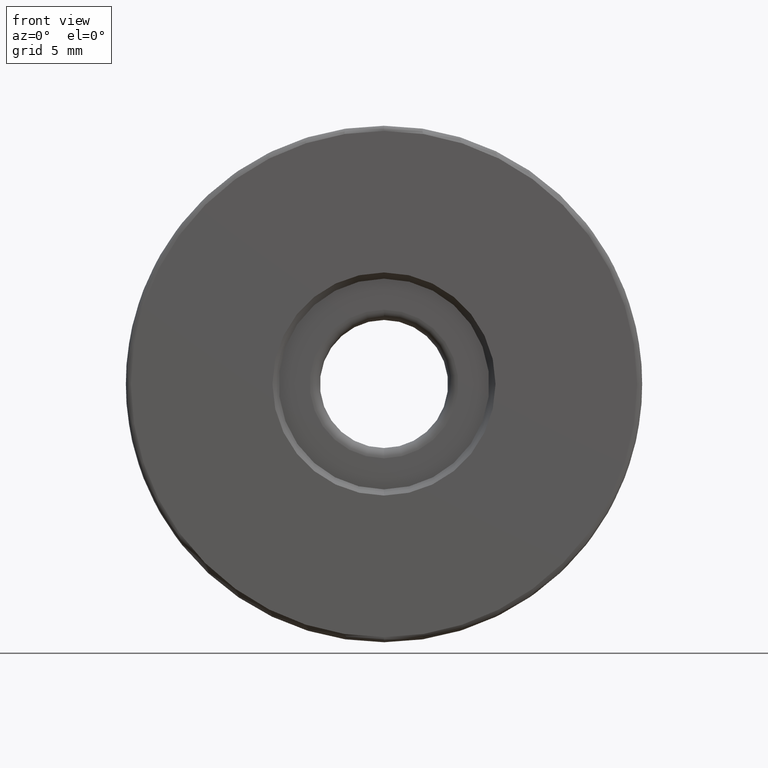
[diagram: clean part render]
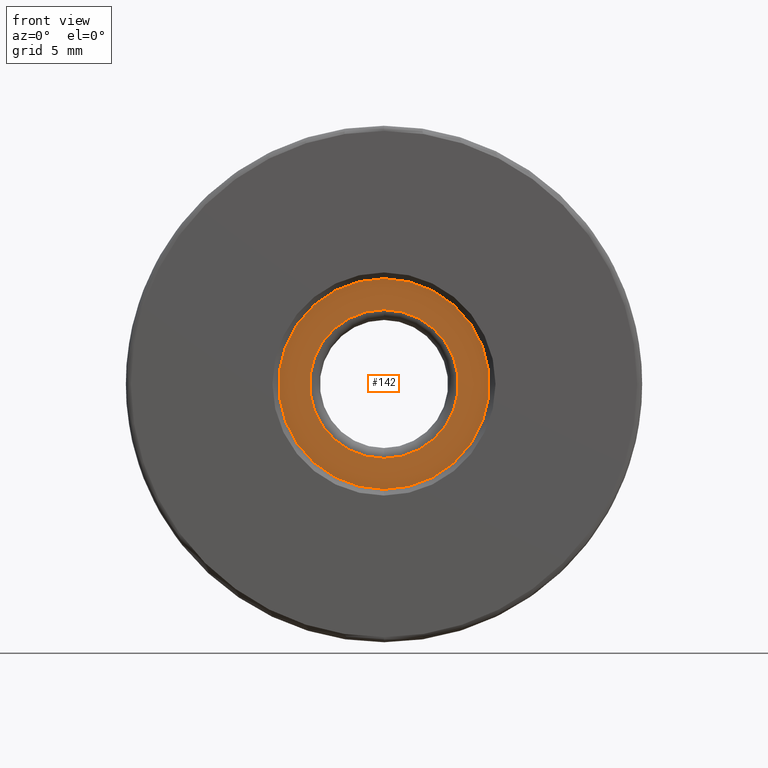
[diagram: same view with one face highlighted and labeled with its STEP entity id]
A machine part, front view. The second image highlights one B-rep face of the part: STEP entity #142.
In plain terms, the highlighted planar face has unit normal (0, -1, 0).
Its self-contained STEP definition (entity closure, byte-faithful):
#14 = DIRECTION ( 'NONE',  ( 0.0000000000000000000, -1.000000000000000000, 0.0000000000000000000 ) ) ;
#21 = DIRECTION ( 'NONE',  ( -0.0000000000000000000, 1.000000000000000000, -0.0000000000000000000 ) ) ;
#24 = CIRCLE ( 'NONE', #324, 5.100000000000000533 ) ;
#44 = AXIS2_PLACEMENT_3D ( 'NONE', #89, #341, #191 ) ;
#56 = CARTESIAN_POINT ( 'NONE',  ( -4.682026255059964726, -2.294975976998275158, 25.00000000000000000 ) ) ;
#60 = FACE_OUTER_BOUND ( 'NONE', #69, .T. ) ;
#62 = AXIS2_PLACEMENT_3D ( 'NONE', #435, #14, #348 ) ;
#65 = DIRECTION ( 'NONE',  ( 0.0000000000000000000, 0.0000000000000000000, -1.000000000000000000 ) ) ;
#69 = EDGE_LOOP ( 'NONE', ( #354, #459 ) ) ;
#70 = DIRECTION ( 'NONE',  ( 0.0000000000000000000, 0.0000000000000000000, 1.000000000000000000 ) ) ;
#82 = EDGE_CURVE ( 'NONE', #617, #272, #524, .T. ) ;
#89 = CARTESIAN_POINT ( 'NONE',  ( -4.682026255059964726, -2.294975976998275158, 25.00000000000000000 ) ) ;
#142 = ADVANCED_FACE ( 'NONE', ( #478, #60 ), #249, .T. ) ;
#147 = AXIS2_PLACEMENT_3D ( 'NONE', #605, #21, #70 ) ;
#175 = CIRCLE ( 'NONE', #147, 5.100000000000000533 ) ;
#182 = CARTESIAN_POINT ( 'NONE',  ( -4.682026255059962949, -2.294975976998275158, 28.60000000000000142 ) ) ;
#191 = DIRECTION ( 'NONE',  ( 0.0000000000000000000, 0.0000000000000000000, -1.000000000000000000 ) ) ;
#239 = EDGE_CURVE ( 'NONE', #522, #576, #175, .T. ) ;
#249 = PLANE ( 'NONE',  #62 ) ;
#266 = DIRECTION ( 'NONE',  ( -0.0000000000000000000, 1.000000000000000000, -0.0000000000000000000 ) ) ;
#272 = VERTEX_POINT ( 'NONE', #508 ) ;
#301 = ORIENTED_EDGE ( 'NONE', *, *, #82, .T. ) ;
#324 = AXIS2_PLACEMENT_3D ( 'NONE', #419, #266, #358 ) ;
#341 = DIRECTION ( 'NONE',  ( -0.0000000000000000000, 1.000000000000000000, -0.0000000000000000000 ) ) ;
#343 = DIRECTION ( 'NONE',  ( -0.0000000000000000000, 1.000000000000000000, -0.0000000000000000000 ) ) ;
#348 = DIRECTION ( 'NONE',  ( 0.0000000000000000000, 0.0000000000000000000, 1.000000000000000000 ) ) ;
#354 = ORIENTED_EDGE ( 'NONE', *, *, #239, .F. ) ;
#358 = DIRECTION ( 'NONE',  ( 0.0000000000000000000, 0.0000000000000000000, 1.000000000000000000 ) ) ;
#373 = CIRCLE ( 'NONE', #44, 3.599999999999999201 ) ;
#382 = EDGE_CURVE ( 'NONE', #272, #617, #373, .T. ) ;
#419 = CARTESIAN_POINT ( 'NONE',  ( -4.682026255059964726, -2.294975976998275158, 25.00000000000000000 ) ) ;
#435 = CARTESIAN_POINT ( 'NONE',  ( -4.682026255059964726, -2.294975976998275158, 25.00000000000000000 ) ) ;
#447 = EDGE_LOOP ( 'NONE', ( #554, #301 ) ) ;
#459 = ORIENTED_EDGE ( 'NONE', *, *, #493, .F. ) ;
#478 = FACE_BOUND ( 'NONE', #447, .T. ) ;
#493 = EDGE_CURVE ( 'NONE', #576, #522, #24, .T. ) ;
#508 = CARTESIAN_POINT ( 'NONE',  ( -4.682026255059964726, -2.294975976998275158, 21.40000000000000213 ) ) ;
#522 = VERTEX_POINT ( 'NONE', #564 ) ;
#524 = CIRCLE ( 'NONE', #534, 3.599999999999999201 ) ;
#526 = CARTESIAN_POINT ( 'NONE',  ( -4.682026255059963837, -2.294975976998275158, 30.10000000000000142 ) ) ;
#534 = AXIS2_PLACEMENT_3D ( 'NONE', #56, #343, #65 ) ;
#554 = ORIENTED_EDGE ( 'NONE', *, *, #382, .T. ) ;
#564 = CARTESIAN_POINT ( 'NONE',  ( -4.682026255059964726, -2.294975976998275158, 19.90000000000000213 ) ) ;
#576 = VERTEX_POINT ( 'NONE', #526 ) ;
#605 = CARTESIAN_POINT ( 'NONE',  ( -4.682026255059964726, -2.294975976998275158, 25.00000000000000000 ) ) ;
#617 = VERTEX_POINT ( 'NONE', #182 ) ;